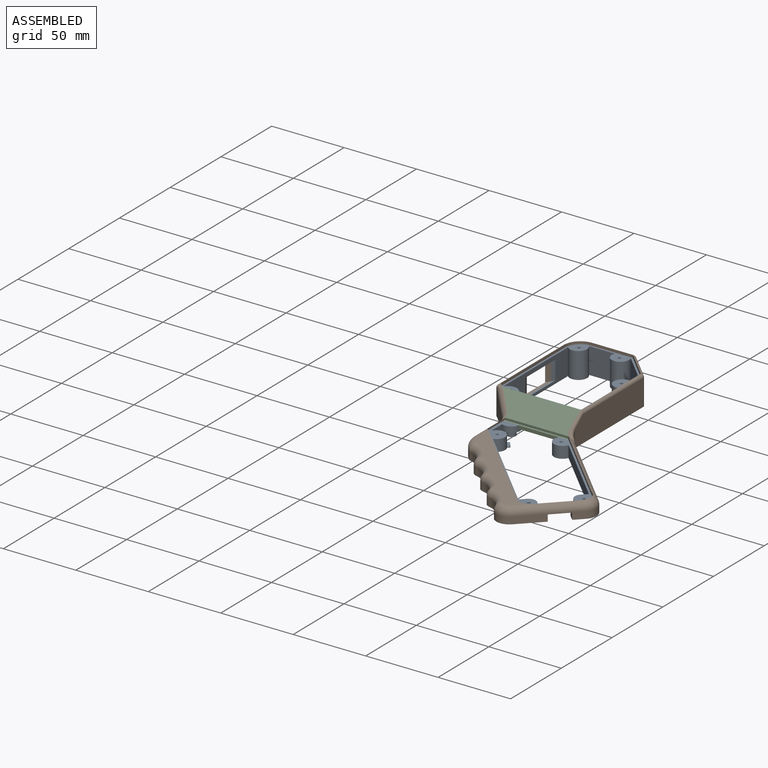
[diagram: assembled view]
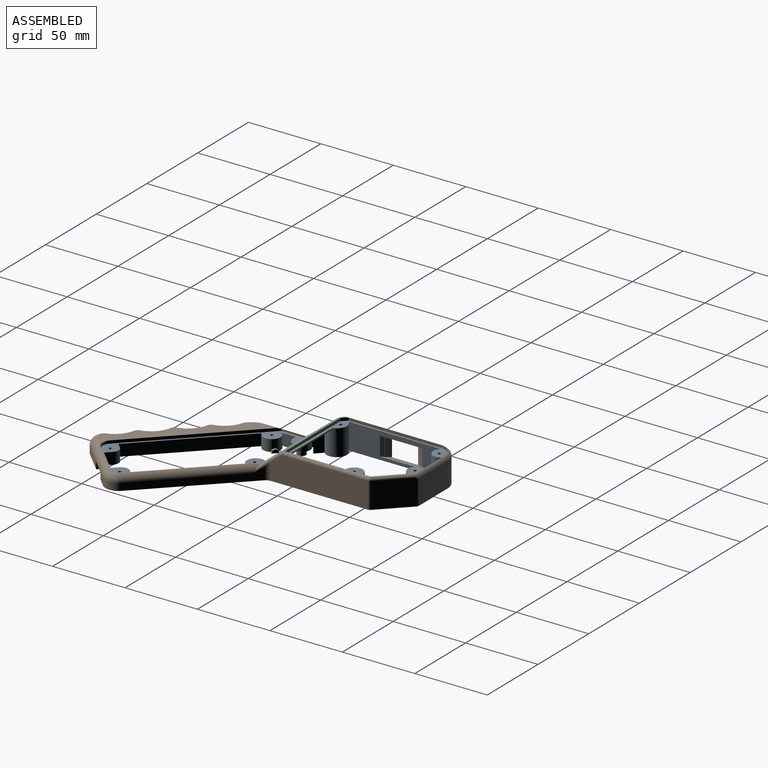
[diagram: assembled view, second angle]
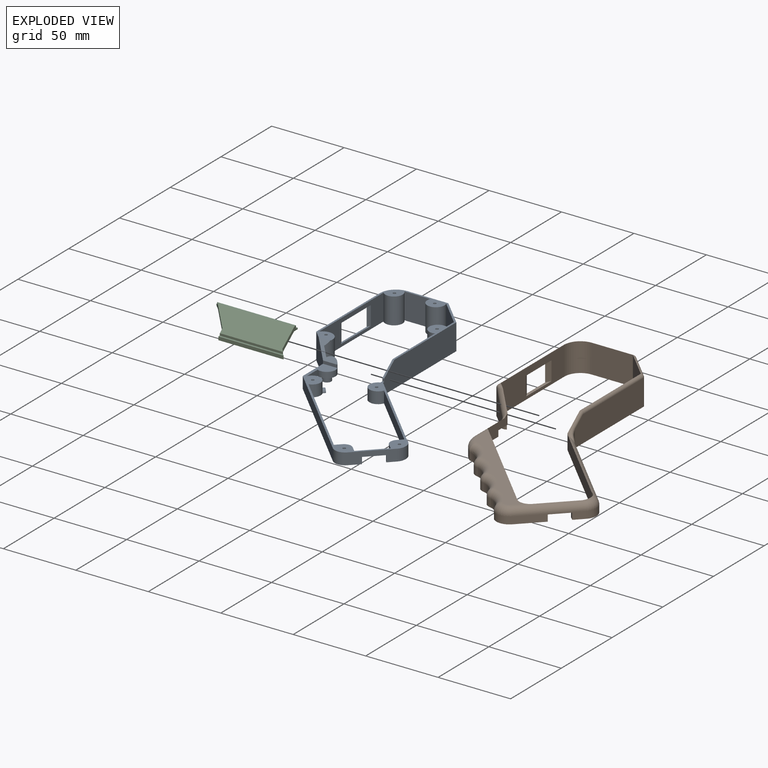
[diagram: exploded view]
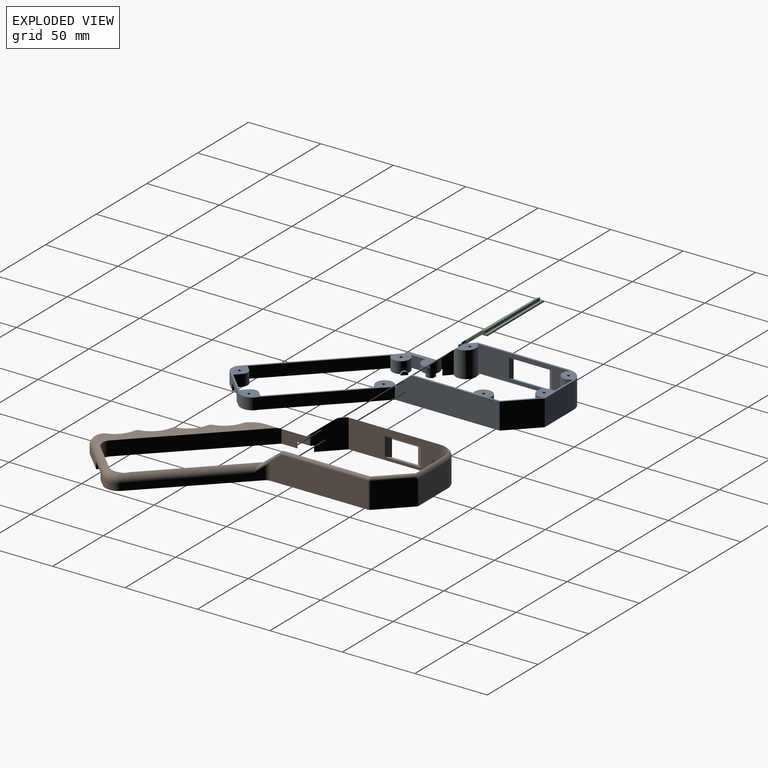
[diagram: exploded view, second angle]
ASSEMBLY  parts=3 mates=2
PART A: 121 faces, bbox 117.2x180.7x18 mm
  f0: plane 162.77x117.21mm, normal (0,0,-1), area 746.1mm2, adj f2,f4,f5,f6,f7,f11,f12,f13
  f1: plane 85.24x82.08mm, normal (0,0,-1), area 299.8mm2, adj f2,f8,f9,f10,f29,f30,f31,f32
  f2: plane 19.6x19.6mm, normal (0.71,-0.71,0), area 158.7mm2, adj f0,f1,f10,f11,f42,f107,f108,f109
  f3: plane 79.32x57.8mm, normal (0,0,1), area 562.1mm2, adj f4,f5,f7,f13,f14,f15,f16,f20
  f4: plane 18x15.56mm, normal (-0.71,-0.71,0), area 331.9mm2, adj f0,f3,f7,f8,f39,f40,f116,f118
  f5: cylinder r=7mm len=18mm, axis (0,0,-1), area 406.9mm2, adj f0,f3,f6,f27,f39
  f6: plane 15.53x5mm, normal (0.71,0.71,0), area 93.5mm2, adj f0,f5,f28,f39,f116,f118
  f7: plane 63.12x18mm, normal (-1,0,0), area 812.2mm2, adj f0,f3,f4,f16,f112,f113,f114,f115
  f8: plane 20x8mm, normal (-1,0,0), area 122.8mm2, adj f1,f4,f9,f42,f117,f118
  f9: plane 69.32x69.32mm, normal (-0.71,-0.71,0), area 784.3mm2, adj f1,f8,f10,f42
  f10: cylinder r=7mm len=9.9mm, axis (0,0,-1), area 88mm2, adj f1,f2,f9,f42
  f11: cylinder r=8.11mm len=13.17mm, axis (0,0,-1), area 123.7mm2, adj f0,f2,f12,f42
  f12: plane 55.37x55.37mm, normal (0.71,0.71,0), area 626.4mm2, adj f0,f11,f13,f42
  f13: plane 72.23x18mm, normal (1,0,0), area 1248.3mm2, adj f0,f3,f12,f14,f38,f41,f42
  f14: plane 18.32x18.32mm, normal (0.71,0.71,0), area 466.4mm2, adj f0,f3,f13,f15
  f15: plane 28.17x18mm, normal (0,1,0), area 507.1mm2, adj f0,f3,f14,f16
  f16: cylinder r=11mm len=18mm, axis (0,0,-1), area 311mm2, adj f0,f3,f7,f15
  f17: plane 8x3.54mm, normal (-0.71,0.71,0), area 40mm2, adj f0,f18,f37,f42
  f18: plane 46.85x46.85mm, normal (-0.71,-0.71,0), area 530mm2, adj f0,f17,f19,f42
  f19: cylinder r=6mm len=11.6mm, axis (0,0,-1), area 189.7mm2, adj f0,f18,f20,f42
  f20: plane 53.84x18mm, normal (-1,0,0), area 909.7mm2, adj f0,f3,f19,f21,f38,f41,f42
  f21: cylinder r=6mm len=18mm, axis (0,0,-1), area 411.9mm2, adj f0,f3,f20,f22
  f22: plane 18x7.29mm, normal (-1,0,0), area 131.2mm2, adj f0,f3,f21,f23
  f23: plane 18x17.56mm, normal (-0.71,-0.71,0), area 447mm2, adj f0,f3,f22,f24
  f24: cylinder r=6mm len=18mm, axis (0,0,-1), area 420.7mm2, adj f0,f3,f23,f25
  f25: plane 18x17.69mm, normal (0,-1,0), area 318.5mm2, adj f0,f3,f24,f26
  f26: cylinder r=6mm len=18mm, axis (0,0,-1), area 339.3mm2, adj f0,f3,f25,f27
  f27: plane 63.36x18mm, normal (1,0,0), area 757.9mm2, adj f0,f3,f5,f26,f112,f113,f114,f115
  f28: cylinder r=6mm len=12mm, axis (0,0,-1), area 143.1mm2, adj f6,f29,f39,f40,f42,f118
  f29: plane 10.47x8mm, normal (1,0,0), area 79.4mm2, adj f1,f28,f30,f42,f117,f118
  f30: cylinder r=6mm len=11.76mm, axis (0,0,-1), area 181.9mm2, adj f1,f29,f31,f42,f110
  f31: plane 58.17x58.17mm, normal (0.71,0.71,0), area 658.1mm2, adj f1,f30,f32,f42
  f32: plane 8x3.54mm, normal (-0.71,0.71,0), area 40mm2, adj f1,f31,f33,f42
  f33: cylinder r=5mm len=8mm, axis (0,0,-1), area 62.8mm2, adj f1,f32,f34,f42
  f34: plane 8x3.54mm, normal (0.71,0.71,0), area 40mm2, adj f1,f33,f35,f42
  f35: plane 14.77x14.77mm, normal (-0.71,0.71,0), area 104.1mm2, adj f0,f1,f34,f36,f42,f107,f108,f109
  f36: plane 8x3.54mm, normal (-0.71,-0.71,0), area 40mm2, adj f0,f35,f37,f42
  f37: cylinder r=5mm len=8mm, axis (0,0,-1), area 62.8mm2, adj f0,f17,f36,f42
  f38: plane 10.05x7.96mm, normal (0,-0.62,0.78), area 16.7mm2, adj f3,f13,f20,f41
  f39: plane 19.96x10.05mm, normal (0,-0.62,0.78), area 73.4mm2, adj f3,f4,f5,f6,f28,f40
  f40: plane 9.91x2.04mm, normal (0,-1,0), area 20.3mm2, adj f4,f28,f39,f42
  f41: plane 2.04x1.3mm, normal (0,-1,0), area 2.7mm2, adj f13,f20,f38,f42
  f42: plane 101.65x91.37mm, normal (0,0,1), area 741.8mm2, adj f2,f8,f9,f10,f11,f12,f13,f17
  f43: plane 5x2.9mm, normal (0.5,-0.87,0), area 16.7mm2, adj f0,f44,f48,f49
  f44: plane 5x3.35mm, normal (1,0,0), area 16.7mm2, adj f0,f43,f45,f49
  f45: plane 5x2.9mm, normal (0.5,0.87,0), area 16.7mm2, adj f0,f44,f46,f49
  f46: plane 5x2.9mm, normal (-0.5,0.87,0), area 16.7mm2, adj f0,f45,f47,f49
  f47: plane 5x3.35mm, normal (-1,0,0), area 16.7mm2, adj f0,f46,f48,f49
  f48: plane 5x2.9mm, normal (-0.5,-0.87,0), area 16.7mm2, adj f0,f43,f47,f49
  f49: plane 6.7x5.8mm, normal (0,0,-1), area 26mm2, adj f43,f44,f45,f46,f47,f48,f106
  f50: plane 5x2.9mm, normal (0.5,-0.87,0), area 16.7mm2, adj f0,f51,f55,f56
  f51: plane 5x3.35mm, normal (1,0,0), area 16.7mm2, adj f0,f50,f52,f56
  f52: plane 5x2.9mm, normal (0.5,0.87,0), area 16.7mm2, adj f0,f51,f53,f56
  f53: plane 5x2.9mm, normal (-0.5,0.87,0), area 16.7mm2, adj f0,f52,f54,f56
  f54: plane 5x3.35mm, normal (-1,0,0), area 16.7mm2, adj f0,f53,f55,f56
  f55: plane 5x2.9mm, normal (-0.5,-0.87,0), area 16.7mm2, adj f0,f50,f54,f56
  f56: plane 6.7x5.8mm, normal (0,0,-1), area 26mm2, adj f50,f51,f52,f53,f54,f55,f105
  f57: plane 5x2.9mm, normal (0.5,-0.87,0), area 16.7mm2, adj f0,f58,f62,f63
  f58: plane 5x3.35mm, normal (1,0,0), area 16.7mm2, adj f0,f57,f59,f63
  f59: plane 5x2.9mm, normal (0.5,0.87,0), area 16.7mm2, adj f0,f58,f60,f63
  f60: plane 5x2.9mm, normal (-0.5,0.87,0), area 16.7mm2, adj f0,f59,f61,f63
  f61: plane 5x3.35mm, normal (-1,0,0), area 16.7mm2, adj f0,f60,f62,f63
  f62: plane 5x2.9mm, normal (-0.5,-0.87,0), area 16.7mm2, adj f0,f57,f61,f63
  f63: plane 6.7x5.8mm, normal (0,0,-1), area 26mm2, adj f57,f58,f59,f60,f61,f62,f104
  f64: plane 5x2.9mm, normal (0.5,-0.87,0), area 16.7mm2, adj f0,f65,f69,f70
  f65: plane 5x3.35mm, normal (1,0,0), area 16.7mm2, adj f0,f64,f66,f70
  f66: plane 5x2.9mm, normal (0.5,0.87,0), area 16.7mm2, adj f0,f65,f67,f70
  f67: plane 5x2.9mm, normal (-0.5,0.87,0), area 16.7mm2, adj f0,f66,f68,f70
  f68: plane 5x3.35mm, normal (-1,0,0), area 16.7mm2, adj f0,f67,f69,f70
  f69: plane 5x2.9mm, normal (-0.5,-0.87,0), area 16.7mm2, adj f0,f64,f68,f70
  f70: plane 6.7x5.8mm, normal (0,0,-1), area 26mm2, adj f64,f65,f66,f67,f68,f69,f103
  f71: plane 5x2.9mm, normal (0.5,-0.87,0), area 16.7mm2, adj f0,f72,f76,f77
  f72: plane 5x3.35mm, normal (1,0,0), area 16.7mm2, adj f0,f71,f73,f77
  f73: plane 5x2.9mm, normal (0.5,0.87,0), area 16.7mm2, adj f0,f72,f74,f77
  f74: plane 5x2.9mm, normal (-0.5,0.87,0), area 16.7mm2, adj f0,f73,f75,f77
  f75: plane 5x3.35mm, normal (-1,0,0), area 16.7mm2, adj f0,f74,f76,f77
  f76: plane 5x2.9mm, normal (-0.5,-0.87,0), area 16.7mm2, adj f0,f71,f75,f77
  f77: plane 6.7x5.8mm, normal (0,0,-1), area 26mm2, adj f71,f72,f73,f74,f75,f76,f102
  f78: plane 5x2.9mm, normal (0.5,-0.87,0), area 16.7mm2, adj f1,f79,f83,f84
  f79: plane 5x3.35mm, normal (1,0,0), area 16.7mm2, adj f1,f78,f80,f84
  f80: plane 5x2.9mm, normal (0.5,0.87,0), area 16.7mm2, adj f1,f79,f81,f84
  f81: plane 5x2.9mm, normal (-0.5,0.87,0), area 16.7mm2, adj f1,f80,f82,f84
  f82: plane 5x3.35mm, normal (-1,0,0), area 16.7mm2, adj f1,f81,f83,f84
  f83: plane 5x2.9mm, normal (-0.5,-0.87,0), area 16.7mm2, adj f1,f78,f82,f84
  f84: plane 6.7x5.8mm, normal (0,0,-1), area 26mm2, adj f78,f79,f80,f81,f82,f83,f101
  f85: plane 5x2.9mm, normal (0.5,-0.87,0), area 16.7mm2, adj f0,f86,f90,f91
  f86: plane 5x3.35mm, normal (1,0,0), area 16.7mm2, adj f0,f85,f87,f91
  f87: plane 5x2.9mm, normal (0.5,0.87,0), area 16.7mm2, adj f0,f86,f88,f91
  f88: plane 5x2.9mm, normal (-0.5,0.87,0), area 16.7mm2, adj f0,f87,f89,f91
  f89: plane 5x3.35mm, normal (-1,0,0), area 16.7mm2, adj f0,f88,f90,f91
  f90: plane 5x2.9mm, normal (-0.5,-0.87,0), area 16.7mm2, adj f0,f85,f89,f91
  f91: plane 6.7x5.8mm, normal (0,0,-1), area 26mm2, adj f85,f86,f87,f88,f89,f90,f100
  f92: plane 5x2.9mm, normal (0.5,-0.87,0), area 16.7mm2, adj f1,f93,f97,f98
  f93: plane 5x3.35mm, normal (1,0,0), area 16.7mm2, adj f1,f92,f94,f98
  f94: plane 5x2.9mm, normal (0.5,0.87,0), area 16.7mm2, adj f1,f93,f95,f98
  f95: plane 5x2.9mm, normal (-0.5,0.87,0), area 16.7mm2, adj f1,f94,f96,f98
  f96: plane 5x3.35mm, normal (-1,0,0), area 16.7mm2, adj f1,f95,f97,f98
  f97: plane 5x2.9mm, normal (-0.5,-0.87,0), area 16.7mm2, adj f1,f92,f96,f98
  f98: plane 6.7x5.8mm, normal (0,0,-1), area 26mm2, adj f92,f93,f94,f95,f96,f97,f99
  f99: cylinder r=1mm len=3mm, axis (0,0,-1), area 18.8mm2, adj f42,f98
  f100: cylinder r=1mm len=3mm, axis (0,0,-1), area 18.8mm2, adj f42,f91
  f101: cylinder r=1mm len=3mm, axis (0,0,-1), area 18.8mm2, adj f42,f84
  f102: cylinder r=1mm len=13mm, axis (0,0,-1), area 81.7mm2, adj f3,f77
  f103: cylinder r=1mm len=13mm, axis (0,0,-1), area 81.7mm2, adj f3,f70
  f104: cylinder r=1mm len=13mm, axis (0,0,-1), area 81.7mm2, adj f3,f63
  f105: cylinder r=1mm len=3mm, axis (0,0,-1), area 18.8mm2, adj f42,f56
  f106: cylinder r=1mm len=13mm, axis (0,0,-1), area 81.7mm2, adj f3,f49
  f107: plane 4.5x0.92mm, normal (-0.71,-0.71,0), area 5.8mm2, adj f0,f2,f35,f108
  f108: plane 10.82x10.82mm, normal (0,0,-1), area 18.2mm2, adj f2,f35,f107,f109
  f109: plane 4.5x0.92mm, normal (0.71,0.71,0), area 5.9mm2, adj f1,f2,f35,f108
  f110: cylinder r=2.22mm len=4.94mm, axis (0.71,0.71,0), area 14.4mm2, adj f1,f30,f111
  f111: plane 3.14x3.14mm, normal (0.71,0.71,0), area 7.7mm2, adj f1,f110
  f112: plane 13x2.25mm, normal (0.87,0.5,0), area 33.8mm2, adj f7,f27,f114,f115
  f113: plane 13x2.25mm, normal (0.87,-0.5,0), area 33.8mm2, adj f7,f27,f114,f115
  f114: plane 29.43x1.3mm, normal (0,0,-1), area 35.3mm2, adj f7,f27,f112,f113
  f115: plane 29.43x1.3mm, normal (0,0,1), area 35.3mm2, adj f7,f27,f112,f113
  f116: plane 4x1.81mm, normal (0.49,-0.87,0), area 8.3mm2, adj f0,f4,f6,f118
  f117: plane 4x2mm, normal (0,1,0), area 8mm2, adj f1,f8,f29,f118
  f118: plane 12.5x11.93mm, normal (0,0,-1), area 82.9mm2, adj f4,f6,f8,f28,f29,f116,f117,f119
  f119: cylinder r=3mm len=6mm, axis (0,0,-1), area 75.4mm2, adj f118,f120
  f120: plane 6x6mm, normal (0,0,-1), area 28.3mm2, adj f119
PART B: 89 faces, bbox 135.8x206.6x32.7 mm
  f0: plane 167.58x123.83mm, normal (0,0,-1), area 823.2mm2, adj f2,f14,f15,f16,f17,f18,f19,f20
  f1: plane 94.26x90.08mm, normal (0,0,-1), area 1417.6mm2, adj f3,f4,f5,f6,f7,f8,f9,f10
  f2: plane 63.8x17mm, normal (-1,0,0), area 850.6mm2, adj f0,f15,f35,f61,f78,f79,f80,f81
  f3: cylinder r=9mm len=11.38mm, axis (0,0,-1), area 61.9mm2, adj f1,f21,f67,f70
  f4: cylinder r=14mm len=11.06mm, axis (0,0,-1), area 85.7mm2, adj f1,f5,f50,f67,f68
  f5: cylinder r=5mm len=5.41mm, axis (0,0,-1), area 28.3mm2, adj f1,f4,f6,f51
  f6: cylinder r=14mm len=11.31mm, axis (0,0,-1), area 92.2mm2, adj f1,f5,f7,f52
  f7: cylinder r=5mm len=5.41mm, axis (0,0,-1), area 28.3mm2, adj f1,f6,f8,f53
  f8: cylinder r=14mm len=11.31mm, axis (0,0,-1), area 92.2mm2, adj f1,f7,f9,f54
  f9: cylinder r=5mm len=5.41mm, axis (0,0,-1), area 28.3mm2, adj f1,f8,f10,f55
  f10: cylinder r=14mm len=11.31mm, axis (0,0,-1), area 92.2mm2, adj f1,f9,f11,f57
  f11: plane 5.41x2.12mm, normal (-0.71,-0.71,0), area 16.2mm2, adj f1,f10,f12,f59
  f12: cylinder r=15mm len=10.68mm, axis (0,0,-1), area 64.3mm2, adj f1,f11,f13,f58
  f13: plane 29.87x8.12mm, normal (-1,0,0), area 124.1mm2, adj f1,f12,f14,f56,f60,f66,f86,f87
  f14: plane 18.16x15.06mm, normal (-0.71,-0.71,0), area 251.1mm2, adj f0,f13,f60,f61,f62,f86,f88
  f15: cylinder r=13mm len=17mm, axis (0,0,-1), area 347.1mm2, adj f0,f2,f16,f36
  f16: plane 28.17x17mm, normal (0,1,0), area 478.9mm2, adj f0,f15,f37,f39
  f17: plane 29.55x29.55mm, normal (0.71,0.71,0), area 474.2mm2, adj f0,f39,f40,f41,f42,f43,f45
  f18: plane 67.1x18mm, normal (1,0,0), area 1186.1mm2, adj f0,f38,f45,f46,f76
  f19: plane 57.93x57.93mm, normal (0.71,0.71,0), area 419.9mm2, adj f0,f20,f46,f73,f74
  f20: cylinder r=9mm len=12.73mm, axis (0,0,-1), area 70.7mm2, adj f0,f19,f21,f72
  f21: plane 30.03x30.03mm, normal (0.71,-0.71,0), area 149.3mm2, adj f0,f1,f3,f20,f71,f82,f83,f84
  f22: plane 2.92x2.92mm, normal (0,0,1), area 2.2mm2, adj f34,f35,f64
  f23: plane 63.13x19.83mm, normal (1,0,0), area 927.6mm2, adj f0,f24,f34,f35,f36,f78,f79,f80
  f24: cylinder r=11mm len=19.83mm, axis (0,0,-1), area 342.6mm2, adj f0,f23,f25,f36,f37
  f25: plane 28.17x19.83mm, normal (0,-1,0), area 558.6mm2, adj f0,f24,f26,f37
  f26: plane 20.01x18.33mm, normal (-0.71,-0.71,0), area 518.1mm2, adj f0,f25,f27,f37,f41,f42
  f27: plane 72.23x20mm, normal (-1,0,0), area 1387.3mm2, adj f0,f26,f28,f38,f43,f48,f77
  f28: plane 55.37x55.37mm, normal (-0.71,-0.71,0), area 761.9mm2, adj f0,f27,f29,f48,f73
  f29: cylinder r=8.11mm len=13.17mm, axis (0,0,-1), area 152.4mm2, adj f0,f28,f30,f71,f72,f73
  f30: plane 19.6x19.6mm, normal (-0.71,0.71,0), area 211.4mm2, adj f0,f1,f29,f31,f71,f82,f83,f84
  f31: cylinder r=7mm len=10mm, axis (0,0,-1), area 109.8mm2, adj f1,f30,f32,f49,f71
  f32: plane 69.44x69.44mm, normal (0.71,0.71,0), area 979.4mm2, adj f1,f31,f33,f49,f56
  f33: plane 20x11.41mm, normal (1,0,0), area 151.3mm2, adj f1,f32,f34,f47,f56,f86,f87
  f34: plane 20.01x15.57mm, normal (0.71,0.71,0), area 365.2mm2, adj f0,f22,f23,f33,f35,f47,f64,f65
  f35: cylinder r=3mm len=65.04mm, axis (0,-1,0), area 238.7mm2, adj f2,f22,f23,f34,f36,f62,f63
  f36: torus R=10mm, axis (0,0,1), area 71.2mm2, adj f15,f23,f24,f35,f37
  f37: cylinder r=3mm len=29.02mm, axis (1,0,0), area 105mm2, adj f16,f24,f25,f26,f36,f40
  f38: cylinder r=2mm len=59.7mm, axis (0,1,0), area 186.9mm2, adj f18,f27,f44,f77
  f39: cylinder r=2mm len=17mm, axis (0,0,-1), area 26.7mm2, adj f0,f16,f17,f40
  f40: bspline ~6x6mm, area 25.6mm2, adj f17,f37,f39,f41
  f41: bspline ~2.41x2.39mm, area 1.7mm2, adj f17,f26,f40,f42
  f42: cylinder r=2mm len=18.58mm, axis (0.71,-0.71,0), area 71.5mm2, adj f17,f26,f41,f43
  f43: bspline ~2.44x2.36mm, area 0.8mm2, adj f17,f27,f42,f44
  f44: sphere r=2mm, area 3.1mm2, adj f38,f43,f45
  f45: cylinder r=2mm len=18mm, axis (0,0,-1), area 28.3mm2, adj f0,f17,f18,f44
  f46: cylinder r=5mm len=12.14mm, axis (0,0,-1), area 40.3mm2, adj f0,f18,f19,f75
  f47: plane 13.48x10.67mm, normal (0,-0.62,0.78), area 1.9mm2, adj f33,f34,f56,f60,f65,f66
  f48: plane 13.13x10.41mm, normal (0,-0.62,0.78), area 8.4mm2, adj f27,f28,f73,f74,f75,f76,f77
  f49: plane 75.63x73.38mm, normal (0,0,1), area 758.8mm2, adj f31,f32,f50,f51,f52,f53,f54,f55
  f50: torus R=18.59mm, axis (0,0,-1), area 123.3mm2, adj f4,f49,f51,f68
  f51: torus R=0.41mm, axis (0,0,-1), area 24.4mm2, adj f5,f49,f50,f52
  f52: torus R=18.59mm, axis (0,0,-1), area 135.3mm2, adj f6,f49,f51,f53
  f53: torus R=0.41mm, axis (0,0,-1), area 24.4mm2, adj f7,f49,f52,f54
  f54: torus R=18.59mm, axis (0,0,-1), area 135.3mm2, adj f8,f49,f53,f55
  f55: torus R=0.41mm, axis (0,0,-1), area 24.4mm2, adj f9,f49,f54,f57
  f56: cylinder r=4.59mm len=28.54mm, axis (0,-1,0), area 149.9mm2, adj f13,f32,f33,f47,f49,f58,f66
  f57: torus R=18.59mm, axis (0,0,-1), area 131.4mm2, adj f10,f49,f55,f59
  f58: torus R=10.41mm, axis (0,0,-1), area 76.2mm2, adj f12,f49,f56,f59
  f59: cylinder r=4.59mm len=5.38mm, axis (0.71,-0.71,0), area 16.9mm2, adj f11,f49,f57,f58
  f60: cylinder r=4.59mm len=17.6mm, axis (0.62,-0.62,-0.49), area 101.3mm2, adj f13,f14,f47,f63,f64,f66
  f61: cylinder r=1.69mm len=17mm, axis (0,0,-1), area 22.6mm2, adj f0,f2,f14,f62
  f62: bspline ~2.66x1.9mm, area 4.1mm2, adj f14,f35,f61,f63
  f63: bspline ~3.42x2.49mm, area 2.9mm2, adj f35,f60,f62,f64
  f64: bspline ~5.19x3mm, area 8.5mm2, adj f22,f34,f60,f63,f65
  f65: cylinder r=1.69mm len=0.05mm, axis (-1,0,0), area 0mm2, adj f34,f47,f64
  f66: cylinder r=1.69mm len=7.21mm, axis (0,-0.78,-0.62), area 11.3mm2, adj f13,f47,f56,f60
  f67: cylinder r=5mm len=5.26mm, axis (0,0,1), area 18.4mm2, adj f1,f3,f4,f69
  f68: bspline ~7.4x6.54mm, area 11.3mm2, adj f4,f50,f69,f70
  f69: bspline ~3.92x3.9mm, area 4.4mm2, adj f67,f68,f70
  f70: torus R=4mm, axis (0,0,-1), area 81.6mm2, adj f3,f49,f68,f69,f71
  f71: cylinder r=5mm len=33.56mm, axis (0.71,0.71,0), area 301.1mm2, adj f21,f29,f30,f31,f49,f70,f72
  f72: torus R=4mm, axis (0,0,-1), area 84.7mm2, adj f20,f29,f71,f73
  f73: cylinder r=5mm len=60.69mm, axis (-0.71,0.71,0), area 485.8mm2, adj f19,f28,f29,f48,f72,f74
  f74: cylinder r=1.69mm len=6.53mm, axis (-0.62,0.62,0.49), area 13.4mm2, adj f19,f48,f73,f75
  f75: bspline ~6.85x6.15mm, area 17.3mm2, adj f46,f48,f74,f76
  f76: cylinder r=1.69mm len=8.45mm, axis (0,0.78,0.62), area 25.1mm2, adj f18,f48,f75,f77
  f77: bspline ~2.35x2.22mm, area 3.1mm2, adj f27,f38,f48,f76
  f78: plane 13x3.46mm, normal (0.87,0.5,0), area 52mm2, adj f2,f23,f80,f81
  f79: plane 13x3.46mm, normal (0.87,-0.5,0), area 52mm2, adj f2,f23,f80,f81
  f80: plane 24.93x2mm, normal (0,0,-1), area 42.9mm2, adj f2,f23,f78,f79
  f81: plane 24.93x2mm, normal (0,0,1), area 42.9mm2, adj f2,f23,f78,f79
  f82: plane 12.73x12.73mm, normal (0,0,-1), area 56mm2, adj f21,f30,f83,f84
  f83: plane 4.5x2.83mm, normal (0.71,0.71,0), area 18mm2, adj f1,f21,f30,f82
  f84: plane 4.5x2.83mm, normal (-0.71,-0.71,0), area 18mm2, adj f0,f21,f30,f82
  f85: plane 4x0.39mm, normal (0.49,-0.87,0), area 1.8mm2, adj f0,f34,f86,f88
  f86: plane 13.62x5.52mm, normal (0,0,-1), area 25.1mm2, adj f13,f14,f33,f34,f85,f87,f88
  f87: cylinder r=3mm len=4mm, axis (0,0,-1), area 14.8mm2, adj f1,f13,f33,f86
  f88: cylinder r=3mm len=4mm, axis (0,0,1), area 15.5mm2, adj f0,f14,f85,f86
PART C: 15 faces, bbox 58.9x17.9x14.3 mm
  f0: plane 4.79x2.82mm, normal (0.71,0.71,0), area 8.7mm2, adj f1,f5,f7,f11,f12,f13,f14
  f1: plane 45.07x2.31mm, normal (0,-1,0), area 104.3mm2, adj f0,f2,f11,f14
  f2: plane 5.73x4.01mm, normal (-1,0,0), area 9.1mm2, adj f1,f3,f7,f11,f12,f13,f14
  f3: plane 13.85x13.85mm, normal (-0.71,-0.71,0), area 47.4mm2, adj f2,f4,f6,f7,f8,f9,f10,f11
  f4: plane 56.09x1mm, normal (0,1,0), area 56.1mm2, adj f3,f5,f9,f10
  f5: plane 15.03x12.08mm, normal (1,0,0), area 36.5mm2, adj f0,f4,f6,f7,f8,f9,f10,f11
  f6: plane 54.44x1.36mm, normal (0,0,1), area 72.9mm2, adj f3,f5,f7,f8
  f7: plane 54.32x13.26mm, normal (0,-0.62,0.78), area 790.4mm2, adj f0,f2,f3,f5,f6,f13
  f8: plane 54.44x2mm, normal (0,1,0), area 108.9mm2, adj f3,f5,f6,f9
  f9: plane 56.09x1.64mm, normal (0,0,1), area 90.9mm2, adj f3,f4,f5,f8
  f10: plane 56.09x3.57mm, normal (0,0,-1), area 193.7mm2, adj f3,f4,f5,f11
  f11: plane 55.34x14.29mm, normal (0,0.62,-0.78), area 842.3mm2, adj f0,f1,f2,f3,f5,f10
  f12: plane 43.67x1.5mm, normal (0,-1,0), area 65.5mm2, adj f0,f2,f13,f14
  f13: plane 43.67x0.2mm, normal (0,0,1), area 8.9mm2, adj f0,f2,f7,f12
  f14: plane 45.07x1.39mm, normal (0,0,1), area 61.7mm2, adj f0,f1,f2,f12
PLACE A t=(80,-0.33,1.83)mm
PLACE B t=(40,0,1.83)mm
PLACE C t=(40,0,1.83)mm
MATE fastened C.f5 <-> B.f27  axis (1,0,0) through (139.8,-15.05,12.3)mm
MATE fastened B.f23 <-> A.f7  axis (1,0,0) through (82,1.69,1.83)mm
